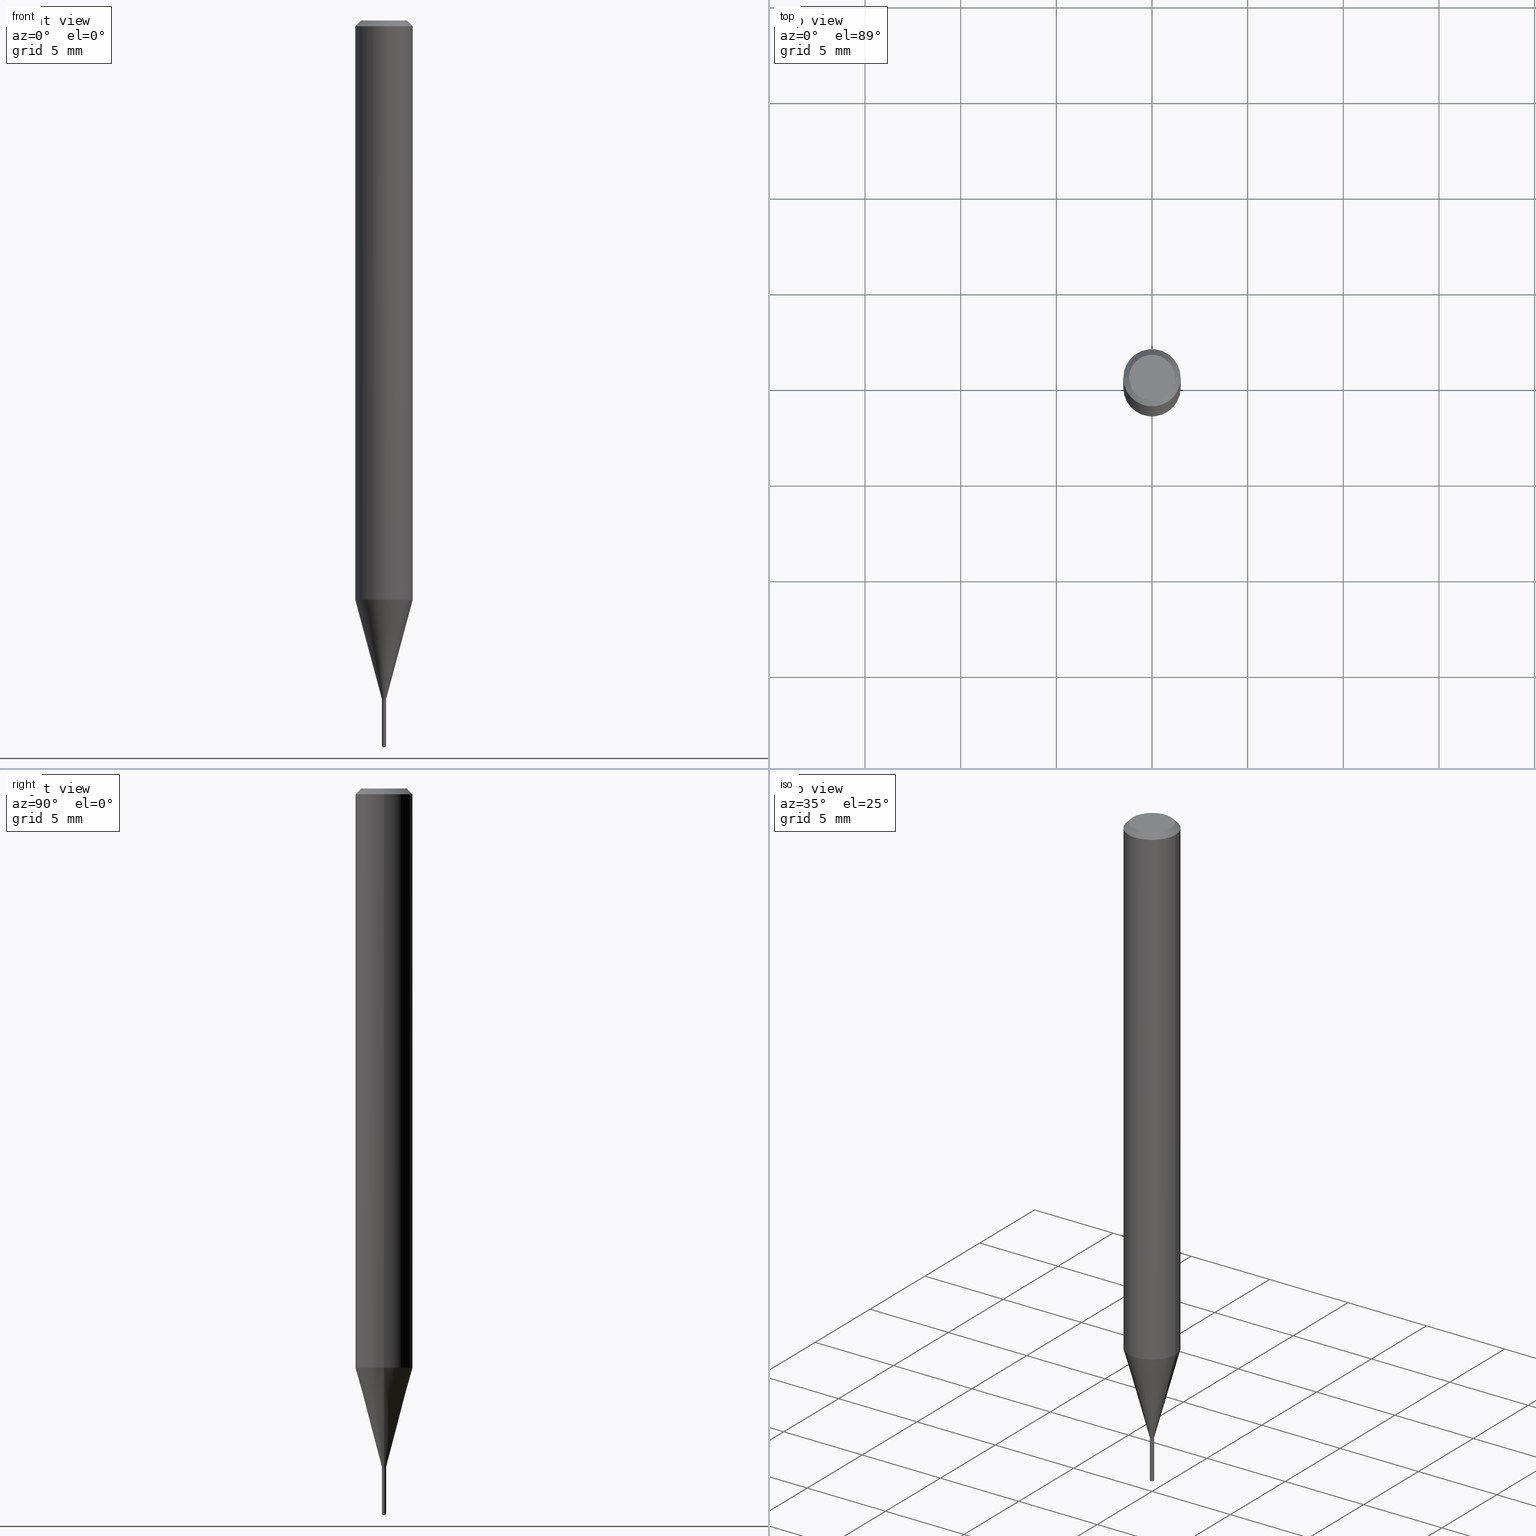
[diagram: canonical four-view strip — front | top / right | iso, engineering-drawing reading convention]
A machine part, canonical four-view strip (front | top / right | iso — engineering-drawing reading convention). The complete STEP part file that produces these views, byte-faithful:
ISO-10303-21;
HEADER;
FILE_DESCRIPTION (( 'STEP AP203' ),
    '1' );
FILE_NAME ('07741.STEP',
    '2024-04-24T02:03:52',
    ( '' ),
    ( '' ),
    'SwSTEP 2.0',
    'SolidWorks 2023',
    '' );
FILE_SCHEMA (( 'CONFIG_CONTROL_DESIGN' ));
ENDSEC;

DATA;
#1 = DIRECTION ( 'NONE',  ( 1.000000000000000000, -6.982962677686266711E-15, 4.876176775795936353E-29 ) ) ;
#2 = ORIENTED_EDGE ( 'NONE', *, *, #283, .F. ) ;
#3 = AXIS2_PLACEMENT_3D ( 'NONE', #92, #396, #398 ) ;
#4 = CC_DESIGN_PERSON_AND_ORGANIZATION_ASSIGNMENT ( #162, #318, ( #103 ) ) ;
#5 = APPROVAL_PERSON_ORGANIZATION ( #375, #462, #136 ) ;
#6 = CYLINDRICAL_SURFACE ( 'NONE', #394, 0.004349999999999999700 ) ;
#7 = ADVANCED_BREP_SHAPE_REPRESENTATION ( '07741', ( #9, #347, #202 ), #143 ) ;
#8 = ORIENTED_EDGE ( 'NONE', *, *, #33, .F. ) ;
#9 = MANIFOLD_SOLID_BREP ( 'Body-Move/Copy2[1]', #102 ) ;
#10 = LINE ( 'NONE', #463, #186 ) ;
#11 = ORIENTED_EDGE ( 'NONE', *, *, #223, .F. ) ;
#12 = CARTESIAN_POINT ( 'NONE',  ( 0.000000000000000000, 0.000000000000000000, 0.000000000000000000 ) ) ;
#13 = ORIENTED_EDGE ( 'NONE', *, *, #133, .T. ) ;
#14 = EDGE_CURVE ( 'NONE', #485, #76, #294, .T. ) ;
#15 = APPROVAL_DATE_TIME ( #352, #147 ) ;
#16 = AXIS2_PLACEMENT_3D ( 'NONE', #441, #101, #299 ) ;
#17 = LOCAL_TIME ( 22, 3, 52.00000000000000000, #480 ) ;
#18 = ORIENTED_EDGE ( 'NONE', *, *, #210, .F. ) ;
#19 = EDGE_CURVE ( 'NONE', #114, #456, #140, .T. ) ;
#20 = VERTEX_POINT ( 'NONE', #57 ) ;
#21 = ORIENTED_EDGE ( 'NONE', *, *, #450, .T. ) ;
#22 = DIRECTION ( 'NONE',  ( 0.000000000000000000, 0.000000000000000000, 1.000000000000000000 ) ) ;
#23 = DIRECTION ( 'NONE',  ( -0.7071067811864256702, 7.493145998869913976E-15, 0.7071067811866693642 ) ) ;
#24 = AXIS2_PLACEMENT_3D ( 'NONE', #135, #72, #100 ) ;
#25 = AXIS2_PLACEMENT_3D ( 'NONE', #38, #47, #197 ) ;
#26 = DIRECTION ( 'NONE',  ( -6.982962677686265133E-15, -1.000000000000000000, 0.000000000000000000 ) ) ;
#27 = CARTESIAN_POINT ( 'NONE',  ( 0.04724000000000000421, -3.852183633974369345E-16, -3.380025165621689721E-19 ) ) ;
#28 = CYLINDRICAL_SURFACE ( 'NONE', #453, 0.004349999999999999700 ) ;
#29 = AXIS2_PLACEMENT_3D ( 'NONE', #216, #284, #278 ) ;
#30 = DIRECTION ( 'NONE',  ( -2.445468806185136877E-29, 3.491481338843145188E-15, 1.000000000000000000 ) ) ;
#31 = CARTESIAN_POINT ( 'NONE',  ( 0.004349999999999999700, -4.905880429208502600E-15, -1.396399999999999864 ) ) ;
#32 = EDGE_LOOP ( 'NONE', ( #108, #419, #8, #351 ) ) ;
#33 = EDGE_CURVE ( 'NONE', #458, #157, #185, .T. ) ;
#34 = CARTESIAN_POINT ( 'NONE',  ( 0.05905000000000006771, -4.123439461173745257E-16, 2.879382386107503723E-30 ) ) ;
#35 = ORIENTED_EDGE ( 'NONE', *, *, #14, .T. ) ;
#36 = VECTOR ( 'NONE', #23, 39.37007874015748143 ) ;
#37 = AXIS2_PLACEMENT_3D ( 'NONE', #191, #311, #455 ) ;
#38 = CARTESIAN_POINT ( 'NONE',  ( 3.652270179353958821E-29, -5.214484939945236663E-15, -1.493486256307229976 ) ) ;
#39 = DIRECTION ( 'NONE',  ( 1.000000000000000000, -6.982962677686319564E-15, 0.000000000000000000 ) ) ;
#40 = EDGE_LOOP ( 'NONE', ( #465, #423, #307, #18 ) ) ;
#41 = DIRECTION ( 'NONE',  ( -2.445468806185136597E-29, 3.491481338843145583E-15, 1.000000000000000000 ) ) ;
#42 = EDGE_CURVE ( 'NONE', #121, #112, #313, .T. ) ;
#43 = ORIENTED_EDGE ( 'NONE', *, *, #249, .T. ) ;
#44 = VECTOR ( 'NONE', #327, 39.37007874015748143 ) ;
#45 = DIRECTION ( 'NONE',  ( -2.445468806185136597E-29, 3.491481338843145583E-15, 1.000000000000000000 ) ) ;
#46 = ORIENTED_EDGE ( 'NONE', *, *, #155, .T. ) ;
#47 = DIRECTION ( 'NONE',  ( -2.445428373332437434E-29, 3.491539240989505774E-15, 1.000000000000000000 ) ) ;
#48 = ORIENTED_EDGE ( 'NONE', *, *, #370, .T. ) ;
#49 = EDGE_CURVE ( 'NONE', #20, #114, #319, .T. ) ;
#50 = PERSON_AND_ORGANIZATION ( #180, #119 ) ;
#51 = VERTEX_POINT ( 'NONE', #207 ) ;
#52 = EDGE_CURVE ( 'NONE', #149, #209, #377, .T. ) ;
#53 = CALENDAR_DATE ( 2024, 23, 4 ) ;
#54 = AXIS2_PLACEMENT_3D ( 'NONE', #234, #418, #194 ) ;
#55 = DIRECTION ( 'NONE',  ( -0.7071067811865453523, 2.468850131082234184E-15, -0.7071067811865496822 ) ) ;
#56 = APPLICATION_PROTOCOL_DEFINITION ( 'international standard', 'config_control_design', 1994, #317 ) ;
#57 = CARTESIAN_POINT ( 'NONE',  ( -0.003850000000000000124, -4.850038344800189146E-15, -1.397700000000000164 ) ) ;
#58 = CARTESIAN_POINT ( 'NONE',  ( 2.888098660104664204E-31, -4.123439461173780263E-17, -0.01181000000000007218 ) ) ;
#59 = VECTOR ( 'NONE', #410, 39.37007874015747433 ) ;
#60 = CARTESIAN_POINT ( 'NONE',  ( 3.418031750404965246E-29, -4.880043467301064347E-15, -1.397699999999999942 ) ) ;
#61 = CC_DESIGN_APPROVAL ( #330, ( #298 ) ) ;
#62 = CALENDAR_DATE ( 2024, 23, 4 ) ;
#63 = CARTESIAN_POINT ( 'NONE',  ( 0.05904999999999999832, -4.463468013801466955E-16, -0.01181000000000007218 ) ) ;
#64 = APPROVAL_DATE_TIME ( #68, #462 ) ;
#65 = DIRECTION ( 'NONE',  ( -2.445468806185136597E-29, 3.491481338843145583E-15, 1.000000000000000000 ) ) ;
#66 = DIRECTION ( 'NONE',  ( -2.445468806185136597E-29, 3.491481338843145583E-15, 1.000000000000000000 ) ) ;
#67 = UNCERTAINTY_MEASURE_WITH_UNIT (LENGTH_MEASURE( 1.000000000000000082E-05 ), #315, 'distance_accuracy_value', 'NONE');
#68 = DATE_AND_TIME ( #476, #288 ) ;
#69 = DIRECTION ( 'NONE',  ( 1.000000000000000000, -6.982962677686319564E-15, 0.000000000000000000 ) ) ;
#70 = CARTESIAN_POINT ( 'NONE',  ( 3.418031750404965246E-29, -4.880043467301064347E-15, -1.397699999999999942 ) ) ;
#71 = EDGE_CURVE ( 'NONE', #390, #149, #131, .T. ) ;
#72 = DIRECTION ( 'NONE',  ( -2.445428373332437434E-29, 3.491539240989505774E-15, 1.000000000000000000 ) ) ;
#73 = CIRCLE ( 'NONE', #303, 0.004349999999999999700 ) ;
#74 = AXIS2_PLACEMENT_3D ( 'NONE', #275, #45, #156 ) ;
#75 = FACE_OUTER_BOUND ( 'NONE', #261, .T. ) ;
#76 = VERTEX_POINT ( 'NONE', #438 ) ;
#77 = CARTESIAN_POINT ( 'NONE',  ( 3.658719406443666740E-29, -5.223529998784463854E-15, -1.496099999999999985 ) ) ;
#78 = ORIENTED_EDGE ( 'NONE', *, *, #163, .T. ) ;
#79 = FACE_OUTER_BOUND ( 'NONE', #316, .T. ) ;
#80 = EDGE_LOOP ( 'NONE', ( #11, #267 ) ) ;
#81 = AXIS2_PLACEMENT_3D ( 'NONE', #334, #224, #173 ) ;
#82 = DIRECTION ( 'NONE',  ( 6.090539988449713749E-15, 0.8571673007021047841, 0.5150380749100667011 ) ) ;
#83 = ORIENTED_EDGE ( 'NONE', *, *, #126, .T. ) ;
#84 = DIRECTION ( 'NONE',  ( 0.7071067811864256702, -2.468850131080980684E-15, 0.7071067811866693642 ) ) ;
#85 = ORIENTED_EDGE ( 'NONE', *, *, #358, .F. ) ;
#86 = PERSON_AND_ORGANIZATION_ROLE ( 'creator' ) ;
#87 = DIRECTION ( 'NONE',  ( -2.445428373332437434E-29, 3.491539240989505774E-15, 1.000000000000000000 ) ) ;
#88 = CONICAL_SURFACE ( 'NONE', #37, 65.52281426576574574, 1.029744258676636326 ) ;
#89 = DIRECTION ( 'NONE',  ( -6.982962677686265133E-15, -1.000000000000000000, 3.468864327941736604E-15 ) ) ;
#90 = CC_DESIGN_PERSON_AND_ORGANIZATION_ASSIGNMENT ( #355, #203, ( #103 ) ) ;
#91 = ADVANCED_FACE ( 'NONE', ( #279 ), #250, .T. ) ;
#92 = CARTESIAN_POINT ( 'NONE',  ( 3.416809016001873005E-29, -4.878297726631642843E-15, -1.397199999999999998 ) ) ;
#93 = MECHANICAL_CONTEXT ( 'NONE', #241, 'mechanical' ) ;
#94 = EDGE_LOOP ( 'NONE', ( #383, #78, #345, #348 ) ) ;
#95 = APPROVAL_DATE_TIME ( #127, #330 ) ;
#96 = DIRECTION ( 'NONE',  ( -2.445428373332437434E-29, 3.491539240989505380E-15, 1.000000000000000000 ) ) ;
#97 = EDGE_CURVE ( 'NONE', #114, #76, #427, .T. ) ;
#98 = FACE_OUTER_BOUND ( 'NONE', #269, .T. ) ;
#99 = DATE_AND_TIME ( #62, #17 ) ;
#100 = DIRECTION ( 'NONE',  ( -6.982962677686265133E-15, -1.000000000000000000, 0.000000000000000000 ) ) ;
#101 = DIRECTION ( 'NONE',  ( 2.445468806185136597E-29, -3.491481338843145583E-15, -1.000000000000000000 ) ) ;
#102 = CLOSED_SHELL ( 'NONE', ( #91, #104, #365, #146, #487 ) ) ;
#103 = PRODUCT_DEFINITION_FORMATION_WITH_SPECIFIED_SOURCE ( 'ANY', '', #172, .NOT_KNOWN. ) ;
#104 = ADVANCED_FACE ( 'NONE', ( #475 ), #439, .T. ) ;
#105 = LINE ( 'NONE', #376, #273 ) ;
#106 = DIRECTION ( 'NONE',  ( -6.982962677686265133E-15, -1.000000000000000000, 0.000000000000000000 ) ) ;
#107 = CARTESIAN_POINT ( 'NONE',  ( 0.004349999999999999700, -4.908673614279578583E-15, -1.397199999999999998 ) ) ;
#108 = ORIENTED_EDGE ( 'NONE', *, *, #276, .T. ) ;
#109 = AXIS2_PLACEMENT_3D ( 'NONE', #60, #215, #26 ) ;
#110 = CIRCLE ( 'NONE', #274, 0.004349999999999999700 ) ;
#111 = CARTESIAN_POINT ( 'NONE',  ( 3.418031750404965806E-29, -4.880043467301065136E-15, -1.397700000000000164 ) ) ;
#112 = VERTEX_POINT ( 'NONE', #359 ) ;
#113 = DIRECTION ( 'NONE',  ( 1.000000000000000000, -6.982962677686266711E-15, 4.876176775795936353E-29 ) ) ;
#114 = VERTEX_POINT ( 'NONE', #125 ) ;
#115 = EDGE_CURVE ( 'NONE', #121, #458, #286, .T. ) ;
#116 = DIRECTION ( 'NONE',  ( -6.982962677686266711E-15, -1.000000000000000000, 0.000000000000000000 ) ) ;
#117 = ORIENTED_EDGE ( 'NONE', *, *, #52, .T. ) ;
#118 = VECTOR ( 'NONE', #182, 39.37007874015748143 ) ;
#119 = ORGANIZATION ( 'UNSPECIFIED', 'UNSPECIFIED', '' ) ;
#120 = DIRECTION ( 'NONE',  ( 1.000000000000000000, -6.982962677686319564E-15, 0.000000000000000000 ) ) ;
#121 = VERTEX_POINT ( 'NONE', #27 ) ;
#122 = CARTESIAN_POINT ( 'NONE',  ( 0.000000000000000000, 0.000000000000000000, 0.000000000000000000 ) ) ;
#123 = CARTESIAN_POINT ( 'NONE',  ( 8.265746106709734507E-48, -1.180129479067563789E-33, -3.380025165646692144E-19 ) ) ;
#124 = PLANE ( 'NONE',  #368 ) ;
#125 = CARTESIAN_POINT ( 'NONE',  ( -0.004349999999999999700, -4.845992525090540742E-15, -1.397199999999999998 ) ) ;
#126 = EDGE_CURVE ( 'NONE', #112, #157, #240, .T. ) ;
#127 = DATE_AND_TIME ( #53, #244 ) ;
#128 = CIRCLE ( 'NONE', #24, 0.004349999999999999700 ) ;
#129 = SECURITY_CLASSIFICATION ( '', '', #444 ) ;
#130 = ORIENTED_EDGE ( 'NONE', *, *, #163, .F. ) ;
#131 = LINE ( 'NONE', #435, #478 ) ;
#132 = CARTESIAN_POINT ( 'NONE',  ( -9.261804570917240977E-28, 1.322385639134920803E-13, 37.87397874015748300 ) ) ;
#133 = EDGE_CURVE ( 'NONE', #247, #458, #246, .T. ) ;
#134 = AXIS2_PLACEMENT_3D ( 'NONE', #335, #367, #217 ) ;
#135 = CARTESIAN_POINT ( 'NONE',  ( 3.652270179353958821E-29, -5.214484939945236663E-15, -1.493486256307229976 ) ) ;
#136 = APPROVAL_ROLE ( '' ) ;
#137 = DIRECTION ( 'NONE',  ( -2.445468806185136597E-29, 3.491481338843145583E-15, 1.000000000000000000 ) ) ;
#138 = DIRECTION ( 'NONE',  ( 2.438088387897960049E-29, -3.491481338843145188E-15, -1.000000000000000000 ) ) ;
#139 = CARTESIAN_POINT ( 'NONE',  ( -3.037588764789873731E-17, -0.004350000000005215146, -1.493486256307229976 ) ) ;
#140 = CIRCLE ( 'NONE', #3, 0.004349999999999999700 ) ;
#141 = EDGE_LOOP ( 'NONE', ( #179, #381 ) ) ;
#142 = CONICAL_SURFACE ( 'NONE', #422, 0.004349999999999999700, 0.2617993877991500740 ) ;
#143 =( GEOMETRIC_REPRESENTATION_CONTEXT ( 3 ) GLOBAL_UNCERTAINTY_ASSIGNED_CONTEXT ( ( #67 ) ) GLOBAL_UNIT_ASSIGNED_CONTEXT ( ( #315, #466, #429 ) ) REPRESENTATION_CONTEXT ( 'NONE', 'WORKASPACE' ) );
#144 = DIRECTION ( 'NONE',  ( -1.000000000000000000, 6.982962677686265922E-15, -4.876176775795935793E-29 ) ) ;
#145 = CARTESIAN_POINT ( 'NONE',  ( 3.658605389342659504E-29, -5.223691858444398585E-15, -1.496099999999999985 ) ) ;
#146 = ADVANCED_FACE ( 'NONE', ( #177 ), #255, .T. ) ;
#147 = APPROVAL ( #434, 'UNSPECIFIED' ) ;
#148 = CARTESIAN_POINT ( 'NONE',  ( 0.004349999999999999700, -3.037588764793525911E-17, 2.121136897471232221E-31 ) ) ;
#149 = VERTEX_POINT ( 'NONE', #481 ) ;
#150 = AXIS2_PLACEMENT_3D ( 'NONE', #123, #356, #204 ) ;
#151 = LINE ( 'NONE', #77, #314 ) ;
#152 = ORIENTED_EDGE ( 'NONE', *, *, #220, .T. ) ;
#153 = FACE_OUTER_BOUND ( 'NONE', #80, .T. ) ;
#154 = EDGE_LOOP ( 'NONE', ( #415, #467, #83, #46 ) ) ;
#155 = EDGE_CURVE ( 'NONE', #157, #458, #344, .T. ) ;
#156 = DIRECTION ( 'NONE',  ( 1.000000000000000000, -6.982962677686272233E-15, 0.000000000000000000 ) ) ;
#157 = VERTEX_POINT ( 'NONE', #411 ) ;
#158 = VECTOR ( 'NONE', #366, 39.37007874015748143 ) ;
#159 = CIRCLE ( 'NONE', #403, 0.004349999999999999700 ) ;
#160 = DIRECTION ( 'NONE',  ( 1.000000000000000000, 0.000000000000000000, 0.000000000000000000 ) ) ;
#161 = ORIENTED_EDGE ( 'NONE', *, *, #14, .F. ) ;
#162 = PERSON_AND_ORGANIZATION ( #180, #119 ) ;
#163 = EDGE_CURVE ( 'NONE', #390, #277, #128, .T. ) ;
#164 = CARTESIAN_POINT ( 'NONE',  ( -0.003850000000000000124, -4.852687571974301136E-15, -1.397700000000000164 ) ) ;
#165 = DATE_TIME_ROLE ( 'creation_date' ) ;
#166 = ORIENTED_EDGE ( 'NONE', *, *, #428, .F. ) ;
#167 = AXIS2_PLACEMENT_3D ( 'NONE', #111, #340, #120 ) ;
#168 = EDGE_LOOP ( 'NONE', ( #282, #304, #48, #192 ) ) ;
#169 = ADVANCED_FACE ( 'NONE', ( #449 ), #293, .F. ) ;
#170 = DIRECTION ( 'NONE',  ( 1.000000000000000000, -6.982962677686266711E-15, 4.876176775795936353E-29 ) ) ;
#171 = CARTESIAN_POINT ( 'NONE',  ( -0.004349999999999999700, 3.090860900556435596E-17, -2.139736764260884027E-31 ) ) ;
#172 = PRODUCT ( '07741', '07741', '', ( #93 ) ) ;
#173 = DIRECTION ( 'NONE',  ( 1.000000000000000000, -6.982962677686209913E-15, 0.000000000000000000 ) ) ;
#174 = CONICAL_SURFACE ( 'NONE', #16, 0.05904999999999999832, 0.7853981633974452814 ) ;
#175 = DIRECTION ( 'NONE',  ( -2.445428373332437434E-29, 3.491539240989505774E-15, 1.000000000000000000 ) ) ;
#176 = CC_DESIGN_PERSON_AND_ORGANIZATION_ASSIGNMENT ( #395, #432, ( #172 ) ) ;
#177 = FACE_OUTER_BOUND ( 'NONE', #94, .T. ) ;
#178 = ADVANCED_FACE ( 'NONE', ( #371 ), #232, .T. ) ;
#179 = ORIENTED_EDGE ( 'NONE', *, *, #196, .T. ) ;
#180 = PERSON ( 'UNSPECIFIED', 'UNSPECIFIED', 'UNSPECIFIED', ('UNSPECIFIED'), ('UNSPECIFIED'), ('UNSPECIFIED') ) ;
#181 = COORDINATED_UNIVERSAL_TIME_OFFSET ( 5, 0, .BEHIND. ) ;
#182 = DIRECTION ( 'NONE',  ( -2.445428373332437434E-29, 3.491539240989505380E-15, 1.000000000000000000 ) ) ;
#183 = ORIENTED_EDGE ( 'NONE', *, *, #115, .T. ) ;
#184 = DIRECTION ( 'NONE',  ( -2.445468806185136877E-29, 3.491481338843145188E-15, 1.000000000000000000 ) ) ;
#185 = CIRCLE ( 'NONE', #280, 0.05904999999999999832 ) ;
#186 = VECTOR ( 'NONE', #84, 39.37007874015748143 ) ;
#187 = ADVANCED_FACE ( 'NONE', ( #329 ), #142, .T. ) ;
#188 = CARTESIAN_POINT ( 'NONE',  ( -0.004349999999999999700, -4.844595932555003539E-15, -1.396399999999999864 ) ) ;
#189 = FACE_OUTER_BOUND ( 'NONE', #32, .T. ) ;
#190 = ORIENTED_EDGE ( 'NONE', *, *, #443, .F. ) ;
#191 = CARTESIAN_POINT ( 'NONE',  ( -9.261804570917240977E-28, 1.322385639134920803E-13, 37.87397874015748300 ) ) ;
#192 = ORIENTED_EDGE ( 'NONE', *, *, #337, .F. ) ;
#193 = VECTOR ( 'NONE', #55, 39.37007874015748143 ) ;
#194 = DIRECTION ( 'NONE',  ( 1.000000000000000000, -6.982962677686265922E-15, 4.876176775795935793E-29 ) ) ;
#195 = EDGE_LOOP ( 'NONE', ( #35, #227, #322, #461 ) ) ;
#196 = EDGE_CURVE ( 'NONE', #112, #121, #243, .T. ) ;
#197 = DIRECTION ( 'NONE',  ( -6.982962677686265133E-15, -1.000000000000000000, 0.000000000000000000 ) ) ;
#198 = ORIENTED_EDGE ( 'NONE', *, *, #328, .F. ) ;
#199 = CALENDAR_DATE ( 2024, 23, 4 ) ;
#200 = ORIENTED_EDGE ( 'NONE', *, *, #126, .F. ) ;
#201 = AXIS2_PLACEMENT_3D ( 'NONE', #484, #477, #260 ) ;
#202 = AXIS2_PLACEMENT_3D ( 'NONE', #122, #22, #160 ) ;
#203 = PERSON_AND_ORGANIZATION_ROLE ( 'creator' ) ;
#204 = DIRECTION ( 'NONE',  ( 1.000000000000000000, -6.982962677686266711E-15, 4.876185090822587894E-29 ) ) ;
#205 = ADVANCED_FACE ( 'NONE', ( #98 ), #174, .T. ) ;
#206 = CYLINDRICAL_SURFACE ( 'NONE', #363, 0.05905000000000006771 ) ;
#207 = CARTESIAN_POINT ( 'NONE',  ( 0.003850000000000000124, -4.906927873610157869E-15, -1.397700000000000164 ) ) ;
#208 = COORDINATED_UNIVERSAL_TIME_OFFSET ( 5, 0, .BEHIND. ) ;
#209 = VERTEX_POINT ( 'NONE', #369 ) ;
#210 = EDGE_CURVE ( 'NONE', #277, #209, #407, .T. ) ;
#211 = AXIS2_PLACEMENT_3D ( 'NONE', #132, #87, #89 ) ;
#212 = APPROVAL_ROLE ( '' ) ;
#213 = AXIS2_PLACEMENT_3D ( 'NONE', #271, #230, #416 ) ;
#214 = CONICAL_SURFACE ( 'NONE', #233, 0.003850000000000000124, 0.7853981633972759724 ) ;
#215 = DIRECTION ( 'NONE',  ( -2.445428373332437434E-29, 3.491539240989505774E-15, 1.000000000000000000 ) ) ;
#216 = CARTESIAN_POINT ( 'NONE',  ( 3.414852640956924410E-29, -4.875504541560567649E-15, -1.396399999999999864 ) ) ;
#217 = DIRECTION ( 'NONE',  ( 1.000000000000000000, -6.982962677686272233E-15, 0.000000000000000000 ) ) ;
#218 = SHAPE_DEFINITION_REPRESENTATION ( #374, #7 ) ;
#219 = CARTESIAN_POINT ( 'NONE',  ( 0.05905000000000015098, -4.575086387139747161E-15, -1.192256820825982278 ) ) ;
#220 = EDGE_CURVE ( 'NONE', #20, #51, #263, .T. ) ;
#221 = LINE ( 'NONE', #31, #59 ) ;
#222 = DIRECTION ( 'NONE',  ( 1.000000000000000000, -6.982962677686209913E-15, 0.000000000000000000 ) ) ;
#223 = EDGE_CURVE ( 'NONE', #51, #20, #362, .T. ) ;
#224 = DIRECTION ( 'NONE',  ( -2.445468806185136597E-29, 3.491481338843145583E-15, 1.000000000000000000 ) ) ;
#225 = AXIS2_PLACEMENT_3D ( 'NONE', #379, #138, #144 ) ;
#226 = CARTESIAN_POINT ( 'NONE',  ( 3.418031750404965806E-29, -4.880043467301065136E-15, -1.397700000000000164 ) ) ;
#227 = ORIENTED_EDGE ( 'NONE', *, *, #443, .T. ) ;
#228 = LINE ( 'NONE', #148, #265 ) ;
#229 = ORIENTED_EDGE ( 'NONE', *, *, #372, .T. ) ;
#230 = DIRECTION ( 'NONE',  ( 2.445468806185136597E-29, -3.491481338843145583E-15, -1.000000000000000000 ) ) ;
#231 = ORIENTED_EDGE ( 'NONE', *, *, #49, .T. ) ;
#232 = CONICAL_SURFACE ( 'NONE', #81, 0.004349999999999999700, 0.2617993877991500740 ) ;
#233 = AXIS2_PLACEMENT_3D ( 'NONE', #226, #380, #39 ) ;
#234 = CARTESIAN_POINT ( 'NONE',  ( -6.583670567889767790E-28, -1.040567692009255057E-13, -1.397700000000000164 ) ) ;
#235 = EDGE_LOOP ( 'NONE', ( #373, #452, #166 ) ) ;
#236 = CARTESIAN_POINT ( 'NONE',  ( 3.658605389342659504E-29, -5.223691858444399374E-15, -1.496099999999999985 ) ) ;
#237 = EDGE_LOOP ( 'NONE', ( #297, #433, #161, #471 ) ) ;
#238 = EDGE_CURVE ( 'NONE', #388, #157, #105, .T. ) ;
#239 = DATE_AND_TIME ( #360, #378 ) ;
#240 = LINE ( 'NONE', #393, #193 ) ;
#241 = APPLICATION_CONTEXT ( 'configuration controlled 3d designs of mechanical parts and assemblies' ) ;
#242 = CC_DESIGN_PERSON_AND_ORGANIZATION_ASSIGNMENT ( #50, #86, ( #298 ) ) ;
#243 = CIRCLE ( 'NONE', #402, 0.04724000000000000421 ) ;
#244 = LOCAL_TIME ( 22, 3, 52.00000000000000000, #437 ) ;
#245 = LENGTH_MEASURE_WITH_UNIT ( LENGTH_MEASURE( 0.02539999999999999897 ), #468 );
#246 = LINE ( 'NONE', #34, #385 ) ;
#247 = VERTEX_POINT ( 'NONE', #219 ) ;
#248 = DIRECTION ( 'NONE',  ( -2.445468806185136597E-29, 3.491481338843145583E-15, 1.000000000000000000 ) ) ;
#249 = EDGE_CURVE ( 'NONE', #485, #247, #221, .T. ) ;
#250 = CYLINDRICAL_SURFACE ( 'NONE', #109, 0.004349999999999999700 ) ;
#251 = CLOSED_SHELL ( 'NONE', ( #310, #205, #482, #178, #291, #290, #187, #341, #323, #169, #349, #459 ) ) ;
#252 = APPROVAL_STATUS ( 'not_yet_approved' ) ;
#253 = APPROVAL_PERSON_ORGANIZATION ( #426, #330, #212 ) ;
#254 = DIRECTION ( 'NONE',  ( -2.445468806185136597E-29, 3.491481338843145583E-15, 1.000000000000000000 ) ) ;
#255 = CYLINDRICAL_SURFACE ( 'NONE', #446, 0.004349999999999999700 ) ;
#256 = DATE_TIME_ROLE ( 'classification_date' ) ;
#257 = CARTESIAN_POINT ( 'NONE',  ( 3.418031750404965806E-29, -4.880043467301065136E-15, -1.397700000000000164 ) ) ;
#258 = CARTESIAN_POINT ( 'NONE',  ( 3.418031750404965806E-29, -4.880043467301065136E-15, -1.397700000000000164 ) ) ;
#259 = CARTESIAN_POINT ( 'NONE',  ( 3.416809016001873005E-29, -4.878297726631642843E-15, -1.397199999999999998 ) ) ;
#260 = DIRECTION ( 'NONE',  ( 1.000000000000000000, -6.982962677686266711E-15, 0.000000000000000000 ) ) ;
#261 = EDGE_LOOP ( 'NONE', ( #342, #152, #229, #353 ) ) ;
#262 = CARTESIAN_POINT ( 'NONE',  ( 0.05904999999999999832, -4.535783407291118600E-16, -0.01181000000000007218 ) ) ;
#263 = CIRCLE ( 'NONE', #421, 0.003850000000000000124 ) ;
#264 = EDGE_LOOP ( 'NONE', ( #386, #231, #2, #430 ) ) ;
#265 = VECTOR ( 'NONE', #382, 39.37007874015748143 ) ;
#266 = FACE_OUTER_BOUND ( 'NONE', #154, .T. ) ;
#267 = ORIENTED_EDGE ( 'NONE', *, *, #220, .F. ) ;
#268 = DIRECTION ( 'NONE',  ( -2.445468806185136597E-29, 3.491481338843145583E-15, 1.000000000000000000 ) ) ;
#269 = EDGE_LOOP ( 'NONE', ( #336, #183, #301, #200 ) ) ;
#270 = DIMENSIONAL_EXPONENTS ( 1.000000000000000000, 0.000000000000000000, 0.000000000000000000, 0.000000000000000000, 0.000000000000000000, 0.000000000000000000, 0.000000000000000000 ) ;
#271 = CARTESIAN_POINT ( 'NONE',  ( 2.888098660104664204E-31, -4.123439461173780263E-17, -0.01181000000000007218 ) ) ;
#272 = EDGE_LOOP ( 'NONE', ( #198, #21, #130 ) ) ;
#273 = VECTOR ( 'NONE', #184, 39.37007874015748143 ) ;
#274 = AXIS2_PLACEMENT_3D ( 'NONE', #302, #343, #116 ) ;
#275 = CARTESIAN_POINT ( 'NONE',  ( 2.915626864291401219E-29, -4.162742441022373029E-15, -1.192256820825982278 ) ) ;
#276 = EDGE_CURVE ( 'NONE', #247, #388, #287, .T. ) ;
#277 = VERTEX_POINT ( 'NONE', #139 ) ;
#278 = DIRECTION ( 'NONE',  ( 1.000000000000000000, -6.982962677686209913E-15, 0.000000000000000000 ) ) ;
#279 = FACE_OUTER_BOUND ( 'NONE', #40, .T. ) ;
#280 = AXIS2_PLACEMENT_3D ( 'NONE', #58, #254, #361 ) ;
#281 = CARTESIAN_POINT ( 'NONE',  ( 0.000000000000000000, 0.000000000000000000, 0.000000000000000000 ) ) ;
#282 = ORIENTED_EDGE ( 'NONE', *, *, #97, .F. ) ;
#283 = EDGE_CURVE ( 'NONE', #456, #114, #73, .T. ) ;
#284 = DIRECTION ( 'NONE',  ( -2.445468806185136597E-29, 3.491481338843145583E-15, 1.000000000000000000 ) ) ;
#285 = PRODUCT_RELATED_PRODUCT_CATEGORY ( 'detail', '', ( #172 ) ) ;
#286 = LINE ( 'NONE', #63, #158 ) ;
#287 = CIRCLE ( 'NONE', #134, 0.05905000000000014404 ) ;
#288 = LOCAL_TIME ( 22, 3, 52.00000000000000000, #181 ) ;
#289 = CARTESIAN_POINT ( 'NONE',  ( 3.414852640956924410E-29, -4.875504541560567649E-15, -1.396399999999999864 ) ) ;
#290 = ADVANCED_FACE ( 'NONE', ( #295 ), #28, .T. ) ;
#291 = ADVANCED_FACE ( 'NONE', ( #300 ), #6, .T. ) ;
#292 = CARTESIAN_POINT ( 'NONE',  ( -3.037588764790107308E-17, -0.004350000000004879477, -1.397699999999999942 ) ) ;
#293 = PLANE ( 'NONE',  #225 ) ;
#294 = CIRCLE ( 'NONE', #29, 0.004349999999999999700 ) ;
#295 = FACE_OUTER_BOUND ( 'NONE', #168, .T. ) ;
#296 = CC_DESIGN_APPROVAL ( #147, ( #103 ) ) ;
#297 = ORIENTED_EDGE ( 'NONE', *, *, #283, .T. ) ;
#298 = PRODUCT_DEFINITION ( 'UNKNOWN', '', #103, #391 ) ;
#299 = DIRECTION ( 'NONE',  ( -1.000000000000000000, 6.982962677686266711E-15, 0.000000000000000000 ) ) ;
#300 = FACE_OUTER_BOUND ( 'NONE', #237, .T. ) ;
#301 = ORIENTED_EDGE ( 'NONE', *, *, #33, .T. ) ;
#302 = CARTESIAN_POINT ( 'NONE',  ( 3.418031750404965246E-29, -4.880043467301064347E-15, -1.397699999999999942 ) ) ;
#303 = AXIS2_PLACEMENT_3D ( 'NONE', #259, #338, #489 ) ;
#304 = ORIENTED_EDGE ( 'NONE', *, *, #19, .T. ) ;
#305 = APPROVAL_PERSON_ORGANIZATION ( #320, #147, #389 ) ;
#306 = DIRECTION ( 'NONE',  ( -2.445468806185136597E-29, 3.491481338843145583E-15, 1.000000000000000000 ) ) ;
#307 = ORIENTED_EDGE ( 'NONE', *, *, #401, .F. ) ;
#308 = CARTESIAN_POINT ( 'NONE',  ( 3.414852640956924410E-29, -4.875504541560567649E-15, -1.396399999999999864 ) ) ;
#309 = ORIENTED_EDGE ( 'NONE', *, *, #155, .F. ) ;
#310 = ADVANCED_FACE ( 'NONE', ( #424 ), #488, .T. ) ;
#311 = DIRECTION ( 'NONE',  ( -2.445428373332437434E-29, 3.491539240989505774E-15, 1.000000000000000000 ) ) ;
#312 = ORIENTED_EDGE ( 'NONE', *, *, #401, .T. ) ;
#313 = CIRCLE ( 'NONE', #150, 0.04724000000000000421 ) ;
#314 = VECTOR ( 'NONE', #82, 39.37007874015748143 ) ;
#315 =( CONVERSION_BASED_UNIT ( 'INCH', #245 ) LENGTH_UNIT ( ) NAMED_UNIT ( #270 ) );
#316 = EDGE_LOOP ( 'NONE', ( #412, #364, #13, #309 ) ) ;
#317 = APPLICATION_CONTEXT ( 'configuration controlled 3d designs of mechanical parts and assemblies' ) ;
#318 = PERSON_AND_ORGANIZATION_ROLE ( 'design_supplier' ) ;
#319 = LINE ( 'NONE', #164, #36 ) ;
#320 = PERSON_AND_ORGANIZATION ( #180, #119 ) ;
#321 = CC_DESIGN_DATE_AND_TIME_ASSIGNMENT ( #99, #256, ( #129 ) ) ;
#322 = ORIENTED_EDGE ( 'NONE', *, *, #276, .F. ) ;
#323 = ADVANCED_FACE ( 'NONE', ( #266 ), #324, .T. ) ;
#324 = CONICAL_SURFACE ( 'NONE', #213, 0.05904999999999999832, 0.7853981633974452814 ) ;
#325 = DIRECTION ( 'NONE',  ( -6.982962677686266711E-15, -1.000000000000000000, 0.000000000000000000 ) ) ;
#326 = CARTESIAN_POINT ( 'NONE',  ( 3.418031750404965246E-29, -4.880043467301064347E-15, -1.397699999999999942 ) ) ;
#327 = DIRECTION ( 'NONE',  ( -2.445468806185136877E-29, 3.491481338843145188E-15, 1.000000000000000000 ) ) ;
#328 = EDGE_CURVE ( 'NONE', #400, #390, #151, .T. ) ;
#329 = FACE_OUTER_BOUND ( 'NONE', #425, .T. ) ;
#330 = APPROVAL ( #397, 'UNSPECIFIED' ) ;
#331 = PERSON_AND_ORGANIZATION ( #180, #119 ) ;
#332 = CIRCLE ( 'NONE', #74, 0.05905000000000014404 ) ;
#333 = CARTESIAN_POINT ( 'NONE',  ( 0.000000000000000000, 0.000000000000000000, 0.000000000000000000 ) ) ;
#334 = CARTESIAN_POINT ( 'NONE',  ( 3.414852640956924410E-29, -4.875504541560567649E-15, -1.396399999999999864 ) ) ;
#335 = CARTESIAN_POINT ( 'NONE',  ( 2.915626864291401219E-29, -4.162742441022373029E-15, -1.192256820825982278 ) ) ;
#336 = ORIENTED_EDGE ( 'NONE', *, *, #42, .F. ) ;
#337 = EDGE_CURVE ( 'NONE', #76, #485, #159, .T. ) ;
#338 = DIRECTION ( 'NONE',  ( -2.445468806185136597E-29, 3.491481338843145583E-15, 1.000000000000000000 ) ) ;
#339 = DIRECTION ( 'NONE',  ( -0.2588190451025213501, 5.211531920934551042E-15, 0.9659258262890682012 ) ) ;
#340 = DIRECTION ( 'NONE',  ( -2.445468806185136597E-29, 3.491481338843145583E-15, 1.000000000000000000 ) ) ;
#341 = ADVANCED_FACE ( 'NONE', ( #79 ), #384, .T. ) ;
#342 = ORIENTED_EDGE ( 'NONE', *, *, #49, .F. ) ;
#343 = DIRECTION ( 'NONE',  ( -2.445428373332437434E-29, 3.491539240989505774E-15, 1.000000000000000000 ) ) ;
#344 = CIRCLE ( 'NONE', #201, 0.05904999999999999832 ) ;
#345 = ORIENTED_EDGE ( 'NONE', *, *, #210, .T. ) ;
#346 = CARTESIAN_POINT ( 'NONE',  ( -0.05905000000000015098, -3.743166955556031959E-15, -1.192256820825982278 ) ) ;
#347 = MANIFOLD_SOLID_BREP ( 'Body-Move/Copy2[2]', #251 ) ;
#348 = ORIENTED_EDGE ( 'NONE', *, *, #52, .F. ) ;
#349 = ADVANCED_FACE ( 'NONE', ( #153 ), #387, .F. ) ;
#350 = LINE ( 'NONE', #188, #447 ) ;
#351 = ORIENTED_EDGE ( 'NONE', *, *, #133, .F. ) ;
#352 = DATE_AND_TIME ( #199, #440 ) ;
#353 = ORIENTED_EDGE ( 'NONE', *, *, #19, .F. ) ;
#354 = VECTOR ( 'NONE', #451, 39.37007874015748143 ) ;
#355 = PERSON_AND_ORGANIZATION ( #180, #119 ) ;
#356 = DIRECTION ( 'NONE',  ( -2.445468806185136597E-29, 3.491481338843145583E-15, 1.000000000000000000 ) ) ;
#357 = FACE_OUTER_BOUND ( 'NONE', #417, .T. ) ;
#358 = EDGE_CURVE ( 'NONE', #388, #247, #332, .T. ) ;
#359 = CARTESIAN_POINT ( 'NONE',  ( -0.04724000000000000421, 3.504923541997677355E-16, -3.380025165670481712E-19 ) ) ;
#360 = CALENDAR_DATE ( 2024, 23, 4 ) ;
#361 = DIRECTION ( 'NONE',  ( 1.000000000000000000, -6.982962677686266711E-15, 0.000000000000000000 ) ) ;
#362 = CIRCLE ( 'NONE', #486, 0.003850000000000000124 ) ;
#363 = AXIS2_PLACEMENT_3D ( 'NONE', #281, #248, #170 ) ;
#364 = ORIENTED_EDGE ( 'NONE', *, *, #358, .T. ) ;
#365 = ADVANCED_FACE ( 'NONE', ( #460 ), #88, .T. ) ;
#366 = DIRECTION ( 'NONE',  ( 0.7071067811865453523, -7.319954787623248157E-15, -0.7071067811865496822 ) ) ;
#367 = DIRECTION ( 'NONE',  ( -2.445468806185136597E-29, 3.491481338843145583E-15, 1.000000000000000000 ) ) ;
#368 = AXIS2_PLACEMENT_3D ( 'NONE', #326, #472, #399 ) ;
#369 = CARTESIAN_POINT ( 'NONE',  ( -3.037588764790107308E-17, -0.004350000000004879477, -1.397699999999999942 ) ) ;
#370 = EDGE_CURVE ( 'NONE', #456, #485, #228, .T. ) ;
#371 = FACE_OUTER_BOUND ( 'NONE', #195, .T. ) ;
#372 = EDGE_CURVE ( 'NONE', #51, #456, #10, .T. ) ;
#373 = ORIENTED_EDGE ( 'NONE', *, *, #450, .F. ) ;
#374 = PRODUCT_DEFINITION_SHAPE ( 'NONE', 'NONE',  #298 ) ;
#375 = PERSON_AND_ORGANIZATION ( #180, #119 ) ;
#376 = CARTESIAN_POINT ( 'NONE',  ( -0.05905000000000006771, 4.195754854663396409E-16, -2.904631170795525045E-30 ) ) ;
#377 = CIRCLE ( 'NONE', #431, 0.004349999999999999700 ) ;
#378 = LOCAL_TIME ( 22, 3, 52.00000000000000000, #208 ) ;
#379 = CARTESIAN_POINT ( 'NONE',  ( 4.132873053354867254E-48, -5.900647395337818946E-34, -1.690012582823346072E-19 ) ) ;
#380 = DIRECTION ( 'NONE',  ( -2.445468806185136597E-29, 3.491481338843145583E-15, 1.000000000000000000 ) ) ;
#381 = ORIENTED_EDGE ( 'NONE', *, *, #42, .T. ) ;
#382 = DIRECTION ( 'NONE',  ( -2.445468806185136877E-29, 3.491481338843145188E-15, 1.000000000000000000 ) ) ;
#383 = ORIENTED_EDGE ( 'NONE', *, *, #71, .F. ) ;
#384 = CYLINDRICAL_SURFACE ( 'NONE', #454, 0.05905000000000006771 ) ;
#385 = VECTOR ( 'NONE', #30, 39.37007874015748143 ) ;
#386 = ORIENTED_EDGE ( 'NONE', *, *, #223, .T. ) ;
#387 = PLANE ( 'NONE',  #54 ) ;
#388 = VERTEX_POINT ( 'NONE', #346 ) ;
#389 = APPROVAL_ROLE ( '' ) ;
#390 = VERTEX_POINT ( 'NONE', #414 ) ;
#391 = DESIGN_CONTEXT ( 'detailed design', #317, 'design' ) ;
#392 = COORDINATED_UNIVERSAL_TIME_OFFSET ( 5, 0, .BEHIND. ) ;
#393 = CARTESIAN_POINT ( 'NONE',  ( -0.05904999999999999832, 3.711095515056362547E-16, -0.01181000000000007218 ) ) ;
#394 = AXIS2_PLACEMENT_3D ( 'NONE', #12, #41, #1 ) ;
#395 = PERSON_AND_ORGANIZATION ( #180, #119 ) ;
#396 = DIRECTION ( 'NONE',  ( -2.445468806185136597E-29, 3.491481338843145583E-15, 1.000000000000000000 ) ) ;
#397 = APPROVAL_STATUS ( 'not_yet_approved' ) ;
#398 = DIRECTION ( 'NONE',  ( 1.000000000000000000, -6.982962677686209913E-15, 0.000000000000000000 ) ) ;
#399 = DIRECTION ( 'NONE',  ( 6.982962677686265922E-15, 1.000000000000000000, -3.491539240989505380E-15 ) ) ;
#400 = VERTEX_POINT ( 'NONE', #236 ) ;
#401 = EDGE_CURVE ( 'NONE', #209, #149, #110, .T. ) ;
#402 = AXIS2_PLACEMENT_3D ( 'NONE', #445, #65, #483 ) ;
#403 = AXIS2_PLACEMENT_3D ( 'NONE', #308, #306, #457 ) ;
#404 = DIRECTION ( 'NONE',  ( -2.445428373332437434E-29, 3.491539240989505774E-15, 1.000000000000000000 ) ) ;
#405 = DIRECTION ( 'NONE',  ( -2.445468806185136597E-29, 3.491481338843145583E-15, 1.000000000000000000 ) ) ;
#406 = PERSON_AND_ORGANIZATION_ROLE ( 'classification_officer' ) ;
#407 = LINE ( 'NONE', #292, #118 ) ;
#408 = CC_DESIGN_PERSON_AND_ORGANIZATION_ASSIGNMENT ( #331, #406, ( #129 ) ) ;
#409 = DIRECTION ( 'NONE',  ( -2.445468806185136597E-29, 3.491481338843145583E-15, 1.000000000000000000 ) ) ;
#410 = DIRECTION ( 'NONE',  ( 0.2588190451025213501, 1.565188264969621968E-15, 0.9659258262890682012 ) ) ;
#411 = CARTESIAN_POINT ( 'NONE',  ( -0.05904999999999999832, -1.682412932350714703E-15, -0.01181000000000007218 ) ) ;
#412 = ORIENTED_EDGE ( 'NONE', *, *, #238, .F. ) ;
#413 = CC_DESIGN_APPROVAL ( #462, ( #129 ) ) ;
#414 = CARTESIAN_POINT ( 'NONE',  ( 3.090860900560088391E-17, 0.004349999999994786856, -1.493486256307229976 ) ) ;
#415 = ORIENTED_EDGE ( 'NONE', *, *, #115, .F. ) ;
#416 = DIRECTION ( 'NONE',  ( -1.000000000000000000, 6.982962677686266711E-15, 0.000000000000000000 ) ) ;
#417 = EDGE_LOOP ( 'NONE', ( #312, #117 ) ) ;
#418 = DIRECTION ( 'NONE',  ( -2.438088387897960049E-29, 3.491481338843145188E-15, 1.000000000000000000 ) ) ;
#419 = ORIENTED_EDGE ( 'NONE', *, *, #238, .T. ) ;
#420 = CARTESIAN_POINT ( 'NONE',  ( 0.000000000000000000, 0.000000000000000000, 0.000000000000000000 ) ) ;
#421 = AXIS2_PLACEMENT_3D ( 'NONE', #258, #409, #442 ) ;
#422 = AXIS2_PLACEMENT_3D ( 'NONE', #289, #405, #222 ) ;
#423 = ORIENTED_EDGE ( 'NONE', *, *, #71, .T. ) ;
#424 = FACE_OUTER_BOUND ( 'NONE', #264, .T. ) ;
#425 = EDGE_LOOP ( 'NONE', ( #190, #473, #43, #85 ) ) ;
#426 = PERSON_AND_ORGANIZATION ( #180, #119 ) ;
#427 = LINE ( 'NONE', #171, #44 ) ;
#428 = EDGE_CURVE ( 'NONE', #277, #390, #464, .T. ) ;
#429 =( NAMED_UNIT ( * ) SI_UNIT ( $, .STERADIAN. ) SOLID_ANGLE_UNIT ( ) );
#430 = ORIENTED_EDGE ( 'NONE', *, *, #372, .F. ) ;
#431 = AXIS2_PLACEMENT_3D ( 'NONE', #469, #404, #325 ) ;
#432 = PERSON_AND_ORGANIZATION_ROLE ( 'design_owner' ) ;
#433 = ORIENTED_EDGE ( 'NONE', *, *, #97, .T. ) ;
#434 = APPROVAL_STATUS ( 'not_yet_approved' ) ;
#435 = CARTESIAN_POINT ( 'NONE',  ( 3.090860900559852966E-17, 0.004349999999995119056, -1.397699999999999942 ) ) ;
#436 = CC_DESIGN_DATE_AND_TIME_ASSIGNMENT ( #239, #165, ( #298 ) ) ;
#437 = COORDINATED_UNIVERSAL_TIME_OFFSET ( 5, 0, .BEHIND. ) ;
#438 = CARTESIAN_POINT ( 'NONE',  ( -0.004349999999999999700, -4.845992525090540742E-15, -1.396399999999999864 ) ) ;
#439 = CONICAL_SURFACE ( 'NONE', #211, 65.52281426576574574, 1.029744258676636326 ) ;
#440 = LOCAL_TIME ( 22, 3, 52.00000000000000000, #392 ) ;
#441 = CARTESIAN_POINT ( 'NONE',  ( 2.888098660104664204E-31, -4.123439461173780263E-17, -0.01181000000000007218 ) ) ;
#442 = DIRECTION ( 'NONE',  ( 1.000000000000000000, -6.982962677686319564E-15, 0.000000000000000000 ) ) ;
#443 = EDGE_CURVE ( 'NONE', #76, #388, #350, .T. ) ;
#444 = SECURITY_CLASSIFICATION_LEVEL ( 'unclassified' ) ;
#445 = CARTESIAN_POINT ( 'NONE',  ( 8.265746106709734507E-48, -1.180129479067563789E-33, -3.380025165646692144E-19 ) ) ;
#446 = AXIS2_PLACEMENT_3D ( 'NONE', #70, #175, #106 ) ;
#447 = VECTOR ( 'NONE', #339, 39.37007874015747433 ) ;
#448 = DIRECTION ( 'NONE',  ( 1.000000000000000000, -6.982962677686266711E-15, 4.876176775795936353E-29 ) ) ;
#449 = FACE_OUTER_BOUND ( 'NONE', #141, .T. ) ;
#450 = EDGE_CURVE ( 'NONE', #400, #277, #490, .T. ) ;
#451 = DIRECTION ( 'NONE',  ( -5.985567269335878171E-15, -0.8571673007021011204, 0.5150380749100726963 ) ) ;
#452 = ORIENTED_EDGE ( 'NONE', *, *, #328, .T. ) ;
#453 = AXIS2_PLACEMENT_3D ( 'NONE', #333, #137, #448 ) ;
#454 = AXIS2_PLACEMENT_3D ( 'NONE', #420, #268, #113 ) ;
#455 = DIRECTION ( 'NONE',  ( -6.982962677686265133E-15, -1.000000000000000000, 3.468864327941736604E-15 ) ) ;
#456 = VERTEX_POINT ( 'NONE', #107 ) ;
#457 = DIRECTION ( 'NONE',  ( 1.000000000000000000, -6.982962677686209913E-15, 0.000000000000000000 ) ) ;
#458 = VERTEX_POINT ( 'NONE', #262 ) ;
#459 = ADVANCED_FACE ( 'NONE', ( #75 ), #214, .T. ) ;
#460 = FACE_OUTER_BOUND ( 'NONE', #272, .T. ) ;
#461 = ORIENTED_EDGE ( 'NONE', *, *, #249, .F. ) ;
#462 = APPROVAL ( #252, 'UNSPECIFIED' ) ;
#463 = CARTESIAN_POINT ( 'NONE',  ( 0.003850000000000000124, -4.906927873610157869E-15, -1.397700000000000164 ) ) ;
#464 = CIRCLE ( 'NONE', #25, 0.004349999999999999700 ) ;
#465 = ORIENTED_EDGE ( 'NONE', *, *, #428, .T. ) ;
#466 =( NAMED_UNIT ( * ) PLANE_ANGLE_UNIT ( ) SI_UNIT ( $, .RADIAN. ) );
#467 = ORIENTED_EDGE ( 'NONE', *, *, #196, .F. ) ;
#468 =( LENGTH_UNIT ( ) NAMED_UNIT ( * ) SI_UNIT ( $, .METRE. ) );
#469 = CARTESIAN_POINT ( 'NONE',  ( 3.418031750404965246E-29, -4.880043467301064347E-15, -1.397699999999999942 ) ) ;
#470 = CARTESIAN_POINT ( 'NONE',  ( 0.004349999999999999700, -4.905880429208502600E-15, -1.396399999999999864 ) ) ;
#471 = ORIENTED_EDGE ( 'NONE', *, *, #370, .F. ) ;
#472 = DIRECTION ( 'NONE',  ( 2.445428373332437434E-29, -3.491539240989505380E-15, -1.000000000000000000 ) ) ;
#473 = ORIENTED_EDGE ( 'NONE', *, *, #337, .T. ) ;
#474 = APPLICATION_PROTOCOL_DEFINITION ( 'international standard', 'config_control_design', 1994, #241 ) ;
#475 = FACE_OUTER_BOUND ( 'NONE', #235, .T. ) ;
#476 = CALENDAR_DATE ( 2024, 23, 4 ) ;
#477 = DIRECTION ( 'NONE',  ( -2.445468806185136597E-29, 3.491481338843145583E-15, 1.000000000000000000 ) ) ;
#478 = VECTOR ( 'NONE', #96, 39.37007874015748143 ) ;
#479 = CC_DESIGN_SECURITY_CLASSIFICATION ( #129, ( #103 ) ) ;
#480 = COORDINATED_UNIVERSAL_TIME_OFFSET ( 5, 0, .BEHIND. ) ;
#481 = CARTESIAN_POINT ( 'NONE',  ( 3.090860900560089624E-17, 0.004349999999995119923, -1.397699999999999942 ) ) ;
#482 = ADVANCED_FACE ( 'NONE', ( #189 ), #206, .T. ) ;
#483 = DIRECTION ( 'NONE',  ( 1.000000000000000000, -6.982962677686266711E-15, 4.876185090822587894E-29 ) ) ;
#484 = CARTESIAN_POINT ( 'NONE',  ( 2.888098660104664204E-31, -4.123439461173780263E-17, -0.01181000000000007218 ) ) ;
#485 = VERTEX_POINT ( 'NONE', #470 ) ;
#486 = AXIS2_PLACEMENT_3D ( 'NONE', #257, #66, #69 ) ;
#487 = ADVANCED_FACE ( 'NONE', ( #357 ), #124, .F. ) ;
#488 = CONICAL_SURFACE ( 'NONE', #167, 0.003850000000000000124, 0.7853981633972759724 ) ;
#489 = DIRECTION ( 'NONE',  ( 1.000000000000000000, -6.982962677686209913E-15, 0.000000000000000000 ) ) ;
#490 = LINE ( 'NONE', #145, #354 ) ;
ENDSEC;
END-ISO-10303-21;
